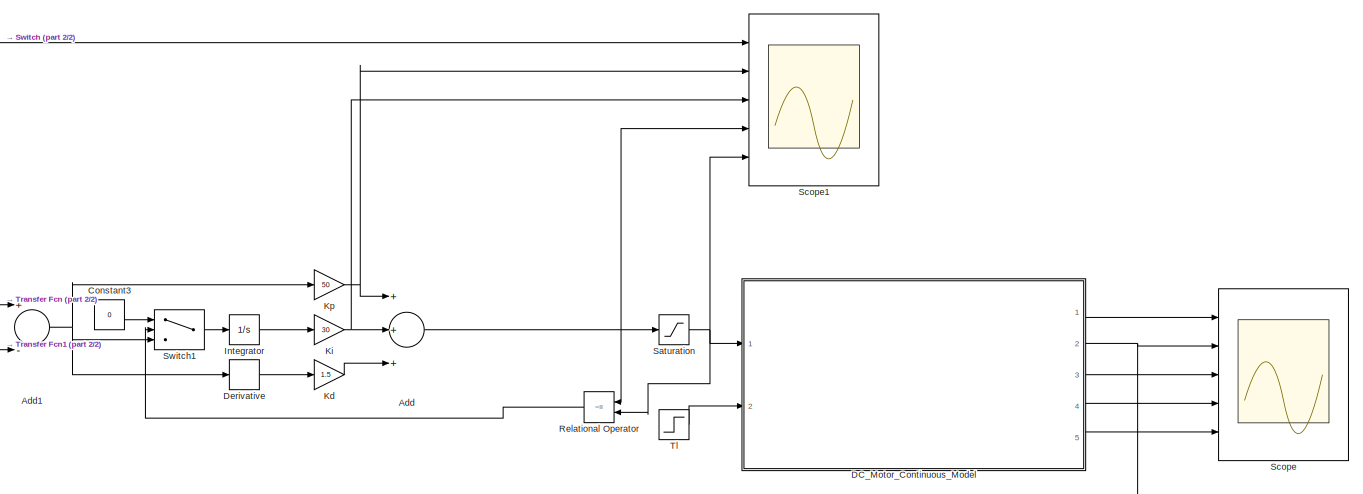
[diagram: root canvas - part 1/2, center side, full height]
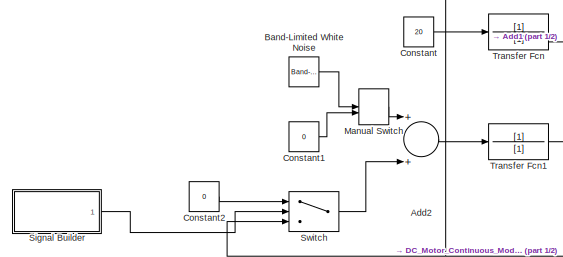
[diagram: root canvas - part 2/2, bottom left region]
MODEL slx_b2c051545a73
KIND model
BLOCK [Sum] Add
  InputSameDT = off
  Inputs = +++
  OutDataTypeStr = Inherit: Inherit via internal rule
  Ports = [3, 1]
  SaturateOnIntegerOverflow = off
BLOCK [Sum] Add1
  InputSameDT = off
  Inputs = +-
  OutDataTypeStr = Inherit: Inherit via internal rule
  Ports = [2, 1]
  SaturateOnIntegerOverflow = off
BLOCK [Sum] Add2
  InputSameDT = off
  OutDataTypeStr = Inherit: Inherit via internal rule
  Ports = [2, 1]
  SaturateOnIntegerOverflow = off
BLOCK [Reference] Band-Limited White Noise  REF=simulink/Sources/Band-Limited
White Noise
  Cov = [0.0001]
  Ports = [0, 1]
  SourceBlock = simulink/Sources/Band-Limited\nWhite Noise
  SourceType = Band-Limited White Noise.
  Ts = 0.001
  VectorParams1D = on
  seed = [23341]
BLOCK [Constant] Constant
  Value = 20
BLOCK [Constant] Constant1
  Value = 0
BLOCK [Constant] Constant2
  Value = 0
BLOCK [Constant] Constant3
  Value = 0
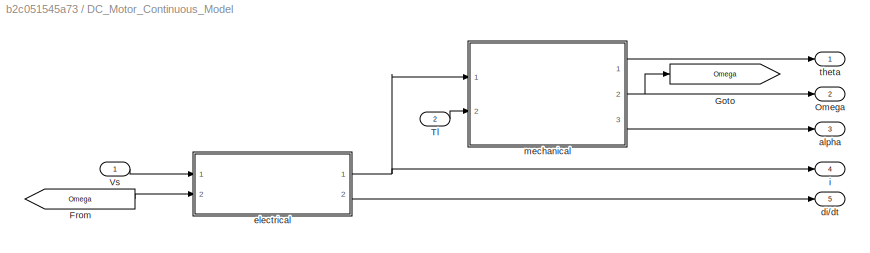
BLOCK [SubSystem] DC_Motor_Continuous_Model
  Ports = [2, 5]
  RequestExecContextInheritance = off
BLOCK [From] DC_Motor_Continuous_Model/From
  GotoTag = Omega
BLOCK [Goto] DC_Motor_Continuous_Model/Goto
  GotoTag = Omega
BLOCK [Outport] DC_Motor_Continuous_Model/Omega
  IconDisplay = Port number
  Port = 2
BLOCK [Inport] DC_Motor_Continuous_Model/Tl
  IconDisplay = Port number
  Port = 2
BLOCK [Inport] DC_Motor_Continuous_Model/Vs
  IconDisplay = Port number
BLOCK [Outport] DC_Motor_Continuous_Model/alpha
  IconDisplay = Port number
  Port = 3
BLOCK [Outport] DC_Motor_Continuous_Model/di//dt
  IconDisplay = Port number
  Port = 5
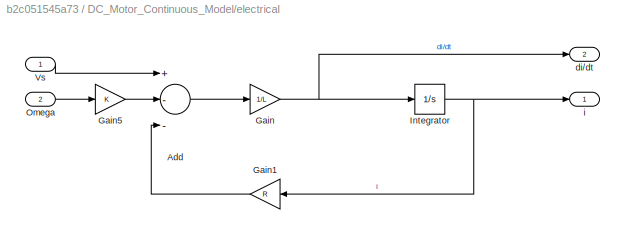
BLOCK [SubSystem] DC_Motor_Continuous_Model/electrical
  Ports = [2, 2]
  RequestExecContextInheritance = off
BLOCK [Sum] DC_Motor_Continuous_Model/electrical/Add
  InputSameDT = off
  Inputs = +--
  OutDataTypeStr = Inherit: Inherit via internal rule
  Ports = [3, 1]
  SaturateOnIntegerOverflow = off
BLOCK [Gain] DC_Motor_Continuous_Model/electrical/Gain
  Gain = 1/L
  OutDataTypeStr = Inherit: Inherit via internal rule
  ParamDataTypeStr = Inherit: Inherit via internal rule
  SaturateOnIntegerOverflow = off
BLOCK [Gain] DC_Motor_Continuous_Model/electrical/Gain1
  Gain = R
  OutDataTypeStr = Inherit: Inherit via internal rule
  ParamDataTypeStr = Inherit: Inherit via internal rule
  SaturateOnIntegerOverflow = off
BLOCK [Gain] DC_Motor_Continuous_Model/electrical/Gain5
  Gain = K
  OutDataTypeStr = Inherit: Inherit via internal rule
  ParamDataTypeStr = Inherit: Inherit via internal rule
  SaturateOnIntegerOverflow = off
BLOCK [Integrator] DC_Motor_Continuous_Model/electrical/Integrator
  Ports = [1, 1]
BLOCK [Inport] DC_Motor_Continuous_Model/electrical/Omega
  IconDisplay = Port number
  Port = 2
BLOCK [Inport] DC_Motor_Continuous_Model/electrical/Vs
  IconDisplay = Port number
BLOCK [Outport] DC_Motor_Continuous_Model/electrical/di//dt
  IconDisplay = Port number
  Port = 2
BLOCK [Outport] DC_Motor_Continuous_Model/electrical/i
  IconDisplay = Port number
BLOCK [Outport] DC_Motor_Continuous_Model/i
  IconDisplay = Port number
  Port = 4
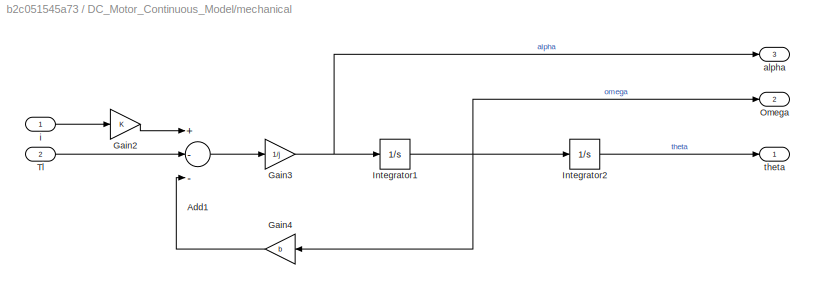
BLOCK [SubSystem] DC_Motor_Continuous_Model/mechanical
  Ports = [2, 3]
  RequestExecContextInheritance = off
BLOCK [Sum] DC_Motor_Continuous_Model/mechanical/Add1
  InputSameDT = off
  Inputs = +--
  OutDataTypeStr = Inherit: Inherit via internal rule
  Ports = [3, 1]
  SaturateOnIntegerOverflow = off
BLOCK [Gain] DC_Motor_Continuous_Model/mechanical/Gain2
  Gain = K
  OutDataTypeStr = Inherit: Inherit via internal rule
  ParamDataTypeStr = Inherit: Inherit via internal rule
  SaturateOnIntegerOverflow = off
BLOCK [Gain] DC_Motor_Continuous_Model/mechanical/Gain3
  Gain = 1/j
  OutDataTypeStr = Inherit: Inherit via internal rule
  ParamDataTypeStr = Inherit: Inherit via internal rule
  SaturateOnIntegerOverflow = off
BLOCK [Gain] DC_Motor_Continuous_Model/mechanical/Gain4
  Gain = b
  OutDataTypeStr = Inherit: Inherit via internal rule
  ParamDataTypeStr = Inherit: Inherit via internal rule
  SaturateOnIntegerOverflow = off
BLOCK [Integrator] DC_Motor_Continuous_Model/mechanical/Integrator1
  Ports = [1, 1]
BLOCK [Integrator] DC_Motor_Continuous_Model/mechanical/Integrator2
  Ports = [1, 1]
BLOCK [Outport] DC_Motor_Continuous_Model/mechanical/Omega
  IconDisplay = Port number
  Port = 2
BLOCK [Inport] DC_Motor_Continuous_Model/mechanical/Tl
  IconDisplay = Port number
  Port = 2
BLOCK [Outport] DC_Motor_Continuous_Model/mechanical/alpha
  IconDisplay = Port number
  Port = 3
BLOCK [Inport] DC_Motor_Continuous_Model/mechanical/i
  IconDisplay = Port number
BLOCK [Outport] DC_Motor_Continuous_Model/mechanical/theta
  IconDisplay = Port number
BLOCK [Outport] DC_Motor_Continuous_Model/theta
  IconDisplay = Port number
BLOCK [Derivative] Derivative
BLOCK [Integrator] Integrator
  Ports = [1, 1]
BLOCK [Gain] Kd
  Gain = 1.5
  OutDataTypeStr = Inherit: Inherit via internal rule
  ParamDataTypeStr = Inherit: Inherit via internal rule
  SaturateOnIntegerOverflow = off
BLOCK [Gain] Ki
  Gain = 30
  OutDataTypeStr = Inherit: Inherit via internal rule
  ParamDataTypeStr = Inherit: Inherit via internal rule
  SaturateOnIntegerOverflow = off
BLOCK [Gain] Kp
  Gain = 50
  OutDataTypeStr = Inherit: Inherit via internal rule
  ParamDataTypeStr = Inherit: Inherit via internal rule
  SaturateOnIntegerOverflow = off
BLOCK [ManualSwitch] Manual Switch
  CurrentSetting = 0
BLOCK [RelationalOperator] Relational Operator
  InputSameDT = off
  Operator = ~=
  OutDataTypeStr = boolean
  Ports = [2, 1]
BLOCK [Saturate] Saturation
  InputPortMap = u0
  LowerLimit = 0
  Ports = [1, 1]
  UpperLimit = Vs
BLOCK [Scope] Scope
  Floating = off
  LimitDataPoints = off
  NumInputPorts = 5
  Ports = [5]
  ShowLegends = off
  YMax = 5~5~5~5~5
  YMin = -5~-5~-5~-5~-5
BLOCK [Scope] Scope1
  Floating = off
  LimitDataPoints = off
  NumInputPorts = 5
  Ports = [5]
  SaveName = ScopeData1
  ShowLegends = off
  YMax = 5~5~5~5~5
  YMin = -5~-5~-5~-5~-5
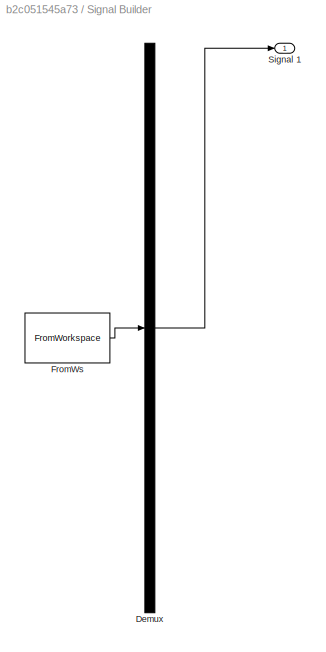
BLOCK [SubSystem] Signal Builder
  ClipboardFcn = sigbuilder_block('clipboard');
  CloseFcn = sigbuilder_block('close');
  ContinueFcn = sigbuilder_block('continue');
  CopyFcn = sigbuilder_block('copy');
  DeleteFcn = sigbuilder_block('delete');
  LoadFcn = sigbuilder_block('load');
  MaskHideContents = on
  ModelCloseFcn = sigbuilder_block('modelClose');
  NameChangeFcn = sigbuilder_block('namechange');
  OpenFcn = sigbuilder_block('open',[437.25 180 550.5 395.25 ]);
  PauseFcn = sigbuilder_block('pause');
  Ports = [0, 1]
  PreSaveFcn = sigbuilder_block('preSave');
  RequestExecContextInheritance = off
  StartFcn = sigbuilder_block('start');
  StopFcn = sigbuilder_block('stop');
  Tag = STV Subsys
BLOCK [Demux] Signal Builder/Demux
  Outputs = 1
  Ports = [1, 1]
  Tag = STV Demux
BLOCK [FromWorkspace] Signal Builder/FromWs
  SampleTime = 0
  Tag = STV FromWs
  VariableName = tuvar
  ZeroCross = on
BLOCK [Outport] Signal Builder/Signal 1
  IconDisplay = Port number
  Tag = STV Outport
BLOCK [Switch] Switch
  Criteria = u2 ~= 0
  InputSameDT = off
  SaturateOnIntegerOverflow = off
BLOCK [Switch] Switch1
  Criteria = u2 ~= 0
  InputSameDT = off
  SaturateOnIntegerOverflow = off
BLOCK [Step] Tl
  SampleTime = 0
  Time = 5
BLOCK [TransferFcn] Transfer Fcn
  Denominator = [1]
BLOCK [TransferFcn] Transfer Fcn1
  Denominator = [1]
NET Add1:1 -> Derivative:1, Kp:1, Switch1:3
LINE Add2:1 -> Transfer Fcn1:1
NET Add:1 -> Relational Operator:1, Saturation:1, Scope1:4
LINE Band-Limited White Noise:1 -> Manual Switch:1
LINE Constant1:1 -> Manual Switch:2
LINE Constant2:1 -> Switch:1
LINE Constant3:1 -> Switch1:1
LINE Constant:1 -> Transfer Fcn:1
LINE DC_Motor_Continuous_Model/From:1 -> DC_Motor_Continuous_Model/electrical:2
LINE DC_Motor_Continuous_Model/Tl:1 -> DC_Motor_Continuous_Model/mechanical:2
LINE DC_Motor_Continuous_Model/Vs:1 -> DC_Motor_Continuous_Model/electrical:1
LINE DC_Motor_Continuous_Model/electrical/Add:1 -> DC_Motor_Continuous_Model/electrical/Gain:1
LINE DC_Motor_Continuous_Model/electrical/Gain1:1 -> DC_Motor_Continuous_Model/electrical/Add:3
LINE DC_Motor_Continuous_Model/electrical/Gain5:1 -> DC_Motor_Continuous_Model/electrical/Add:2
NET DC_Motor_Continuous_Model/electrical/Gain:1 -> DC_Motor_Continuous_Model/electrical/Integrator:1, DC_Motor_Continuous_Model/electrical/di//dt:1
NET DC_Motor_Continuous_Model/electrical/Integrator:1 -> DC_Motor_Continuous_Model/electrical/Gain1:1, DC_Motor_Continuous_Model/electrical/i:1
LINE DC_Motor_Continuous_Model/electrical/Omega:1 -> DC_Motor_Continuous_Model/electrical/Gain5:1
LINE DC_Motor_Continuous_Model/electrical/Vs:1 -> DC_Motor_Continuous_Model/electrical/Add:1
NET DC_Motor_Continuous_Model/electrical:1 -> DC_Motor_Continuous_Model/i:1, DC_Motor_Continuous_Model/mechanical:1
LINE DC_Motor_Continuous_Model/electrical:2 -> DC_Motor_Continuous_Model/di//dt:1
LINE DC_Motor_Continuous_Model/mechanical/Add1:1 -> DC_Motor_Continuous_Model/mechanical/Gain3:1
LINE DC_Motor_Continuous_Model/mechanical/Gain2:1 -> DC_Motor_Continuous_Model/mechanical/Add1:1
NET DC_Motor_Continuous_Model/mechanical/Gain3:1 -> DC_Motor_Continuous_Model/mechanical/Integrator1:1, DC_Motor_Continuous_Model/mechanical/alpha:1
LINE DC_Motor_Continuous_Model/mechanical/Gain4:1 -> DC_Motor_Continuous_Model/mechanical/Add1:3
NET DC_Motor_Continuous_Model/mechanical/Integrator1:1 -> DC_Motor_Continuous_Model/mechanical/Gain4:1, DC_Motor_Continuous_Model/mechanical/Integrator2:1, DC_Motor_Continuous_Model/mechanical/Omega:1
LINE DC_Motor_Continuous_Model/mechanical/Integrator2:1 -> DC_Motor_Continuous_Model/mechanical/theta:1
LINE DC_Motor_Continuous_Model/mechanical/Tl:1 -> DC_Motor_Continuous_Model/mechanical/Add1:2
LINE DC_Motor_Continuous_Model/mechanical/i:1 -> DC_Motor_Continuous_Model/mechanical/Gain2:1
LINE DC_Motor_Continuous_Model/mechanical:1 -> DC_Motor_Continuous_Model/theta:1
NET DC_Motor_Continuous_Model/mechanical:2 -> DC_Motor_Continuous_Model/Goto:1, DC_Motor_Continuous_Model/Omega:1
LINE DC_Motor_Continuous_Model/mechanical:3 -> DC_Motor_Continuous_Model/alpha:1
LINE DC_Motor_Continuous_Model:1 -> Scope:1
NET DC_Motor_Continuous_Model:2 -> Scope1:1, Scope:2, Switch:3
LINE DC_Motor_Continuous_Model:3 -> Scope:3
LINE DC_Motor_Continuous_Model:4 -> Scope:4
LINE DC_Motor_Continuous_Model:5 -> Scope:5
LINE Derivative:1 -> Kd:1
LINE Integrator:1 -> Ki:1
LINE Kd:1 -> Add:3
NET Ki:1 -> Add:2, Scope1:3
NET Kp:1 -> Add:1, Scope1:2
LINE Manual Switch:1 -> Add2:1
LINE Relational Operator:1 -> Switch1:2
NET Saturation:1 -> DC_Motor_Continuous_Model:1, Relational Operator:2, Scope1:5
LINE Signal Builder:1 -> Switch:2
LINE Switch1:1 -> Integrator:1
LINE Switch:1 -> Add2:2
LINE Tl:1 -> DC_Motor_Continuous_Model:2
LINE Transfer Fcn1:1 -> Add1:2
LINE Transfer Fcn:1 -> Add1:1
note: NET lines group one-source signal fan-out (src -> all destinations, sorted); 1:1 wires keep LINE
